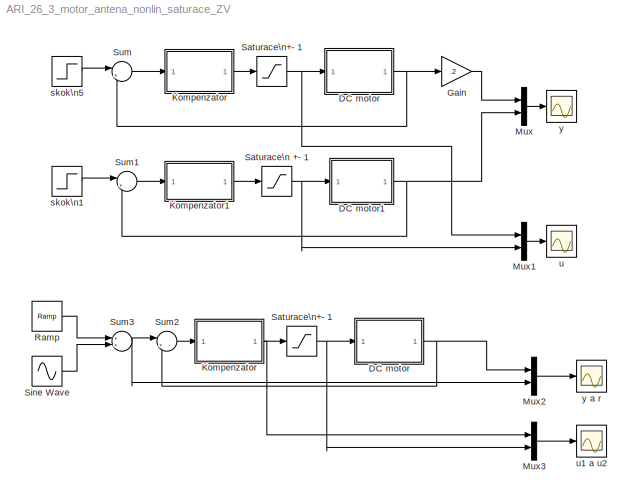
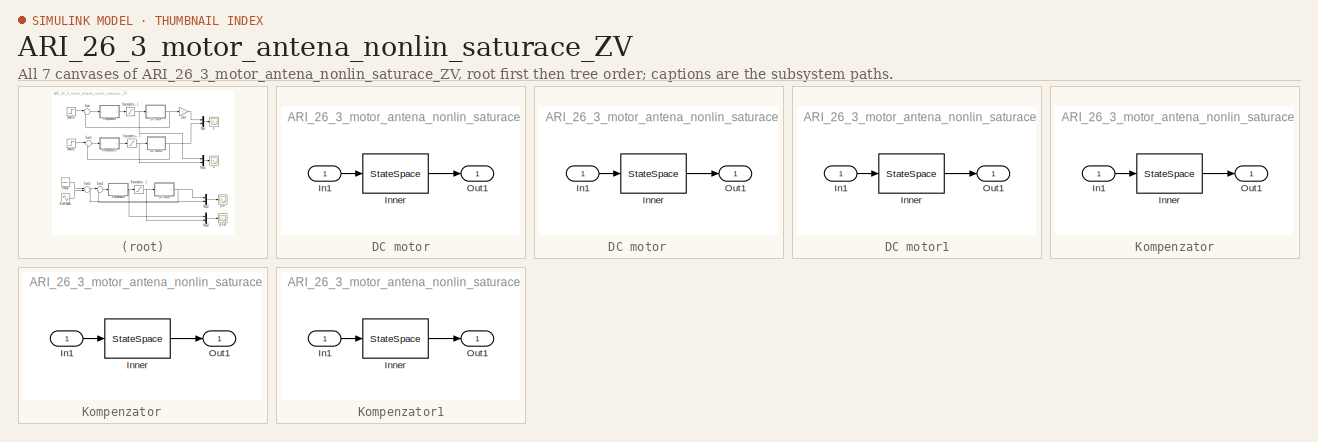
[diagram: thumbnail index - all 7 canvases of the model, root first then tree order]
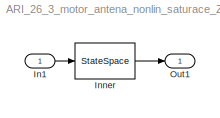
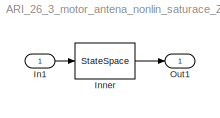
MODEL ARI_26_3_motor_antena_nonlin_saturace_ZV
KIND model
BLOCK [SubSystem] DC motor
  FunctionWithSeparateData = off
  MaskCallbackString = |||
  MaskDescription = Polynomial matrix fraction description of a linear system.\n\nThis block represents a linear system defined by the polynomial matrix fraction of its transfer function.
  MaskDisplay = droots([],[0 -1],1)
  MaskEnableString = on,on,on,on
  MaskHelp = This block represents a linear system [<I>A,B,C,D</I>] defined by the polynomial matrix fraction (<I>PMF</I>) of its transfer function <I>T</I>.  \n<p>\n<b>Left Matrix Fraction</b> item of the popup menu <b>Type</b> indicates the transfer function in the form of <I>left PMF</I>:  \n<p>\n<I>T</I> = inv(<I>Q</I>) <I>P</I>.\n<p> \n<b>Right Matrix Fraction</b> item is used if the transfer function is ...<+1109ch>  <repeated x6 — deduplicated; at blocks: DC motor, DC motor1, Kompenzator, Kompenzator1>
  MaskHideContents = off
  MaskIconFrame = on
  MaskIconOpaque = on
  MaskIconRotate = none
  MaskIconUnits = autoscale
  MaskInitialization = Label = 'xxx';\n[A,B,C,D,Label,var] = polymask2(F, fvar, length(InCon));\nupdate;\n
  MaskPortRotate = default
  MaskPromptString = PMF Object:|Initial states:|Sample time (discrete time only):|Force variable:
  MaskStyleString = edit,edit,edit,popup(No change|s   (continous time)|p   (continous time)|z      (discrete time)|q      (discrete time)|d      (discrete time)|z^-1 (discrete time))
  MaskToolTipString = on,on,on,on
  MaskTunableValueString = on,on,on,on
  MaskType = PMF Block
  MaskValueString = 1/s/(s+1)|[ ]|1|No change
  MaskVariables = F=&1;InCon=@2;SampTime=@3;fvar=@4;
  MaskVisibilityString = on,on,on,on
  MinAlgLoopOccurrences = off
  Opaque = off
  Ports = [1, 1]
  PropExecContextOutsideSubsystem = off
  RTWSystemCode = Auto
  RequestExecContextInheritance = off
  SID = 1
BLOCK [SubSystem] DC motor      
  FunctionWithSeparateData = off
  MaskCallbackString = |||
  MaskDescription = Polynomial matrix fraction description of a linear system.\n\nThis block represents a linear system defined by the polynomial matrix fraction of its transfer function.
  MaskDisplay = droots([],[0 -1],1)
  MaskEnableString = on,on,on,on
  MaskHideContents = off
  MaskIconFrame = on
  MaskIconOpaque = on
  MaskIconRotate = none
  MaskIconUnits = autoscale
  MaskInitialization = Label = 'xxx';\n[A,B,C,D,Label,var] = polymask2(F, fvar, length(InCon));\nupdate;\n
  MaskPortRotate = default
  MaskPromptString = PMF Object:|Initial states:|Sample time (discrete time only):|Force variable:
  MaskStyleString = edit,edit,edit,popup(No change|s   (continous time)|p   (continous time)|z      (discrete time)|q      (discrete time)|d      (discrete time)|z^-1 (discrete time))
  MaskToolTipString = on,on,on,on
  MaskTunableValueString = on,on,on,on
  MaskType = PMF Block
  MaskValueString = 1/s/(s+1)|[ ]|1|No change
  MaskVariables = F=&1;InCon=@2;SampTime=@3;fvar=@4;
  MaskVisibilityString = on,on,on,on
  MinAlgLoopOccurrences = off
  Opaque = off
  Ports = [1, 1]
  PropExecContextOutsideSubsystem = off
  RTWSystemCode = Auto
  RequestExecContextInheritance = off
  SID = 5
BLOCK [Inport] DC motor      /In1
  IconDisplay = Port number
  SID = 6
BLOCK [StateSpace] DC motor      /Inner
  A = A
  B = B
  C = C
  D = D
  SID = 7
  X0 = InCon
BLOCK [Outport] DC motor      /Out1
  IconDisplay = Port number
  SID = 8
BLOCK [Inport] DC motor/In1
  IconDisplay = Port number
  SID = 2
BLOCK [StateSpace] DC motor/Inner
  A = A
  B = B
  C = C
  D = D
  SID = 3
  X0 = InCon
BLOCK [Outport] DC motor/Out1
  IconDisplay = Port number
  SID = 4
BLOCK [SubSystem] DC motor1
  FunctionWithSeparateData = off
  MaskCallbackString = |||
  MaskDescription = Polynomial matrix fraction description of a linear system.\n\nThis block represents a linear system defined by the polynomial matrix fraction of its transfer function.
  MaskDisplay = droots([],[0 -1],1)
  MaskEnableString = on,on,on,on
  MaskHideContents = off
  MaskIconFrame = on
  MaskIconOpaque = on
  MaskIconRotate = none
  MaskIconUnits = autoscale
  MaskInitialization = Label = 'xxx';\n[A,B,C,D,Label,var] = polymask2(F, fvar, length(InCon));\nupdate;\n
  MaskPortRotate = default
  MaskPromptString = PMF Object:|Initial states:|Sample time (discrete time only):|Force variable:
  MaskStyleString = edit,edit,edit,popup(No change|s   (continous time)|p   (continous time)|z      (discrete time)|q      (discrete time)|d      (discrete time)|z^-1 (discrete time))
  MaskToolTipString = on,on,on,on
  MaskTunableValueString = on,on,on,on
  MaskType = PMF Block
  MaskValueString = 1/s/(s+1)|[ ]|1|No change
  MaskVariables = F=&1;InCon=@2;SampTime=@3;fvar=@4;
  MaskVisibilityString = on,on,on,on
  MinAlgLoopOccurrences = off
  Opaque = off
  Ports = [1, 1]
  PropExecContextOutsideSubsystem = off
  RTWSystemCode = Auto
  RequestExecContextInheritance = off
  SID = 9
BLOCK [Inport] DC motor1/In1
  IconDisplay = Port number
  SID = 10
BLOCK [StateSpace] DC motor1/Inner
  A = A
  B = B
  C = C
  D = D
  SID = 11
  X0 = InCon
BLOCK [Outport] DC motor1/Out1
  IconDisplay = Port number
  SID = 12
BLOCK [Gain] Gain
  Gain = .2
  OutDataTypeStr = Inherit: Inherit via internal rule
  ParamDataTypeStr = Inherit: Inherit via internal rule
  SID = 13
  SaturateOnIntegerOverflow = off
BLOCK [SubSystem] Kompenzator
  FunctionWithSeparateData = off
  MaskCallbackString = |||
  MaskDescription = Polynomial matrix fraction description of a linear system.\n\nThis block represents a linear system defined by the polynomial matrix fraction of its transfer function.
  MaskDisplay = droots([-2],[-10],5)
  MaskEnableString = on,on,on,on
  MaskHideContents = off
  MaskIconFrame = on
  MaskIconOpaque = on
  MaskIconRotate = none
  MaskIconUnits = autoscale
  MaskInitialization = Label = 'xxx';\n[A,B,C,D,Label,var] = polymask2(F, fvar, length(InCon));\nupdate;\n
  MaskPortRotate = default
  MaskPromptString = PMF Object:|Initial states:|Sample time (discrete time only):|Force variable:
  MaskStyleString = edit,edit,edit,popup(No change|s   (continous time)|p   (continous time)|z      (discrete time)|q      (discrete time)|d      (discrete time)|z^-1 (discrete time))
  MaskToolTipString = on,on,on,on
  MaskTunableValueString = on,on,on,on
  MaskType = PMF Block
  MaskValueString = 5*(s+2)/(s+10)|[ ]|1|No change
  MaskVariables = F=&1;InCon=@2;SampTime=@3;fvar=@4;
  MaskVisibilityString = on,on,on,on
  MinAlgLoopOccurrences = off
  Opaque = off
  Ports = [1, 1]
  PropExecContextOutsideSubsystem = off
  RTWSystemCode = Auto
  RequestExecContextInheritance = off
  SID = 14
BLOCK [SubSystem] Kompenzator      
  FunctionWithSeparateData = off
  MaskCallbackString = |||
  MaskDescription = Polynomial matrix fraction description of a linear system.\n\nThis block represents a linear system defined by the polynomial matrix fraction of its transfer function.
  MaskDisplay = droots([-2],[-10],5)
  MaskEnableString = on,on,on,on
  MaskHideContents = off
  MaskIconFrame = on
  MaskIconOpaque = on
  MaskIconRotate = none
  MaskIconUnits = autoscale
  MaskInitialization = Label = 'xxx';\n[A,B,C,D,Label,var] = polymask2(F, fvar, length(InCon));\nupdate;\n
  MaskPortRotate = default
  MaskPromptString = PMF Object:|Initial states:|Sample time (discrete time only):|Force variable:
  MaskStyleString = edit,edit,edit,popup(No change|s   (continous time)|p   (continous time)|z      (discrete time)|q      (discrete time)|d      (discrete time)|z^-1 (discrete time))
  MaskToolTipString = on,on,on,on
  MaskTunableValueString = on,on,on,on
  MaskType = PMF Block
  MaskValueString = 5*(s+2)/(s+10)|[ ]|1|No change
  MaskVariables = F=&1;InCon=@2;SampTime=@3;fvar=@4;
  MaskVisibilityString = on,on,on,on
  MinAlgLoopOccurrences = off
  Opaque = off
  Ports = [1, 1]
  PropExecContextOutsideSubsystem = off
  RTWSystemCode = Auto
  RequestExecContextInheritance = off
  SID = 18
BLOCK [Inport] Kompenzator      /In1
  IconDisplay = Port number
  SID = 19
BLOCK [StateSpace] Kompenzator      /Inner
  A = A
  B = B
  C = C
  D = D
  SID = 20
  X0 = InCon
BLOCK [Outport] Kompenzator      /Out1
  IconDisplay = Port number
  SID = 21
BLOCK [Inport] Kompenzator/In1
  IconDisplay = Port number
  SID = 15
BLOCK [StateSpace] Kompenzator/Inner
  A = A
  B = B
  C = C
  D = D
  SID = 16
  X0 = InCon
BLOCK [Outport] Kompenzator/Out1
  IconDisplay = Port number
  SID = 17
BLOCK [SubSystem] Kompenzator1
  FunctionWithSeparateData = off
  MaskCallbackString = |||
  MaskDescription = Polynomial matrix fraction description of a linear system.\n\nThis block represents a linear system defined by the polynomial matrix fraction of its transfer function.
  MaskDisplay = droots([-2],[-10],5)
  MaskEnableString = on,on,on,on
  MaskHideContents = off
  MaskIconFrame = on
  MaskIconOpaque = on
  MaskIconRotate = none
  MaskIconUnits = autoscale
  MaskInitialization = Label = 'xxx';\n[A,B,C,D,Label,var] = polymask2(F, fvar, length(InCon));\nupdate;\n
  MaskPortRotate = default
  MaskPromptString = PMF Object:|Initial states:|Sample time (discrete time only):|Force variable:
  MaskStyleString = edit,edit,edit,popup(No change|s   (continous time)|p   (continous time)|z      (discrete time)|q      (discrete time)|d      (discrete time)|z^-1 (discrete time))
  MaskToolTipString = on,on,on,on
  MaskTunableValueString = on,on,on,on
  MaskType = PMF Block
  MaskValueString = 5*(s+2)/(s+10)|[ ]|1|No change
  MaskVariables = F=&1;InCon=@2;SampTime=@3;fvar=@4;
  MaskVisibilityString = on,on,on,on
  MinAlgLoopOccurrences = off
  Opaque = off
  Ports = [1, 1]
  PropExecContextOutsideSubsystem = off
  RTWSystemCode = Auto
  RequestExecContextInheritance = off
  SID = 22
BLOCK [Inport] Kompenzator1/In1
  IconDisplay = Port number
  SID = 23
BLOCK [StateSpace] Kompenzator1/Inner
  A = A
  B = B
  C = C
  D = D
  SID = 24
  X0 = InCon
BLOCK [Outport] Kompenzator1/Out1
  IconDisplay = Port number
  SID = 25
BLOCK [Mux] Mux
  DisplayOption = bar
  Inputs = 2
  Ports = [2, 1]
  SID = 26
BLOCK [Mux] Mux1
  DisplayOption = bar
  Inputs = 2
  Ports = [2, 1]
  SID = 27
BLOCK [Mux] Mux2
  DisplayOption = bar
  Inputs = 2
  Ports = [2, 1]
  SID = 28
BLOCK [Mux] Mux3
  DisplayOption = bar
  Inputs = 2
  Ports = [2, 1]
  SID = 29
BLOCK [Reference] Ramp  REF=simulink/Sources/Ramp
  Ports = [0, 1]
  SID = 30
  SourceBlock = simulink/Sources/Ramp
  SourceType = Ramp
  VectorParams1D = on
  X0 = 0
  slope = .9
  start = 0
BLOCK [Saturate] Saturace\n +- 1
  InputPortMap = u0
  LowerLimit = -1
  Ports = [1, 1]
  SID = 31
  UpperLimit = 1
BLOCK [Saturate] Saturace\n+- 1
  InputPortMap = u0
  LowerLimit = -1
  Ports = [1, 1]
  SID = 32
  UpperLimit = 1
BLOCK [Saturate] Saturace\n+- 1     
  InputPortMap = u0
  LowerLimit = -1
  Ports = [1, 1]
  SID = 33
  UpperLimit = 1
BLOCK [Sin] Sine Wave
  Amplitude = .5
  Frequency = 10
  Ports = [0, 1]
  SID = 34
  SampleTime = 0
BLOCK [Sum] Sum
  IconShape = round
  InputSameDT = off
  Inputs = |+-
  OutDataTypeStr = Inherit: Inherit via internal rule
  Ports = [2, 1]
  SID = 35
  SaturateOnIntegerOverflow = off
BLOCK [Sum] Sum1
  IconShape = round
  InputSameDT = off
  Inputs = |+-
  OutDataTypeStr = Inherit: Inherit via internal rule
  Ports = [2, 1]
  SID = 36
  SaturateOnIntegerOverflow = off
BLOCK [Sum] Sum2
  IconShape = round
  InputSameDT = off
  Inputs = |+-
  OutDataTypeStr = Inherit: Inherit via internal rule
  Ports = [2, 1]
  SID = 37
  SaturateOnIntegerOverflow = off
BLOCK [Sum] Sum3
  InputSameDT = off
  OutDataTypeStr = Inherit: Inherit via internal rule
  Ports = [2, 1]
  SID = 38
  SaturateOnIntegerOverflow = off
BLOCK [Step] skok\n1
  SID = 39
  SampleTime = 0
  Time = 0
BLOCK [Step] skok\n5
  After = 5
  SID = 40
  SampleTime = 0
  Time = 0
BLOCK [Scope] u
  DataFormat = StructureWithTime
  Floating = off
  NumInputPorts = 1
  Ports = [1]
  SID = 41
  SampleTime = 0
  SaveName = ScopeData1
BLOCK [Scope] u1 a u2 
  DataFormat = StructureWithTime
  Floating = off
  NumInputPorts = 1
  Ports = [1]
  SID = 42
  SampleTime = 0
  SaveName = ScopeData2
BLOCK [Scope] y
  DataFormat = StructureWithTime
  Floating = off
  NumInputPorts = 1
  Ports = [1]
  SID = 43
  SampleTime = 0
BLOCK [Scope] y a r
  DataFormat = StructureWithTime
  Floating = off
  NumInputPorts = 1
  Ports = [1]
  SID = 44
  SampleTime = 0
  SaveName = ScopeData3
LINE DC motor      /In1:1 -> DC motor      /Inner:1
LINE DC motor      /Inner:1 -> DC motor      /Out1:1
NET DC motor      :1 -> Mux2:1, Sum2:2
LINE DC motor/In1:1 -> DC motor/Inner:1
LINE DC motor/Inner:1 -> DC motor/Out1:1
LINE DC motor1/In1:1 -> DC motor1/Inner:1
LINE DC motor1/Inner:1 -> DC motor1/Out1:1
NET DC motor1:1 -> Mux:2, Sum1:2
NET DC motor:1 -> Gain:1, Sum:2
LINE Gain:1 -> Mux:1
LINE Kompenzator      /In1:1 -> Kompenzator      /Inner:1
LINE Kompenzator      /Inner:1 -> Kompenzator      /Out1:1
NET Kompenzator      :1 -> Mux3:1, Saturace\n+- 1     :1
LINE Kompenzator/In1:1 -> Kompenzator/Inner:1
LINE Kompenzator/Inner:1 -> Kompenzator/Out1:1
LINE Kompenzator1/In1:1 -> Kompenzator1/Inner:1
LINE Kompenzator1/Inner:1 -> Kompenzator1/Out1:1
LINE Kompenzator1:1 -> Saturace\n +- 1:1
LINE Kompenzator:1 -> Saturace\n+- 1:1
LINE Mux1:1 -> u:1
LINE Mux2:1 -> y a r:1
LINE Mux3:1 -> u1 a u2 :1
LINE Mux:1 -> y:1
LINE Ramp:1 -> Sum3:1
NET Saturace\n +- 1:1 -> DC motor1:1, Mux1:2
NET Saturace\n+- 1     :1 -> DC motor      :1, Mux3:2
NET Saturace\n+- 1:1 -> DC motor:1, Mux1:1
LINE Sine Wave:1 -> Sum3:2
LINE Sum1:1 -> Kompenzator1:1
LINE Sum2:1 -> Kompenzator      :1
NET Sum3:1 -> Mux2:2, Sum2:1
LINE Sum:1 -> Kompenzator:1
LINE skok\n1:1 -> Sum1:1
LINE skok\n5:1 -> Sum:1
note: NET lines group one-source signal fan-out (src -> all destinations, sorted); 1:1 wires keep LINE
